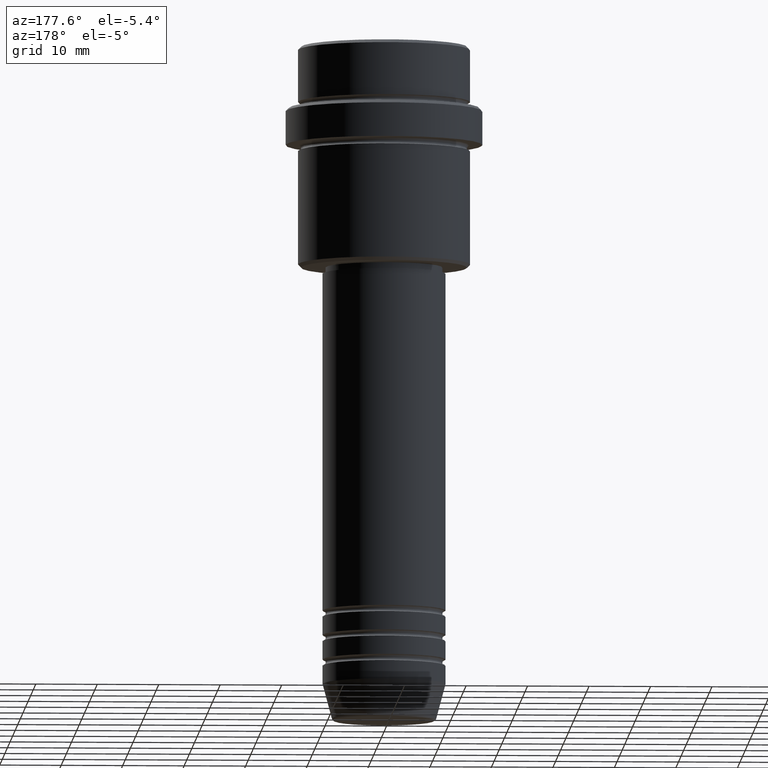
[diagram: clean part render]
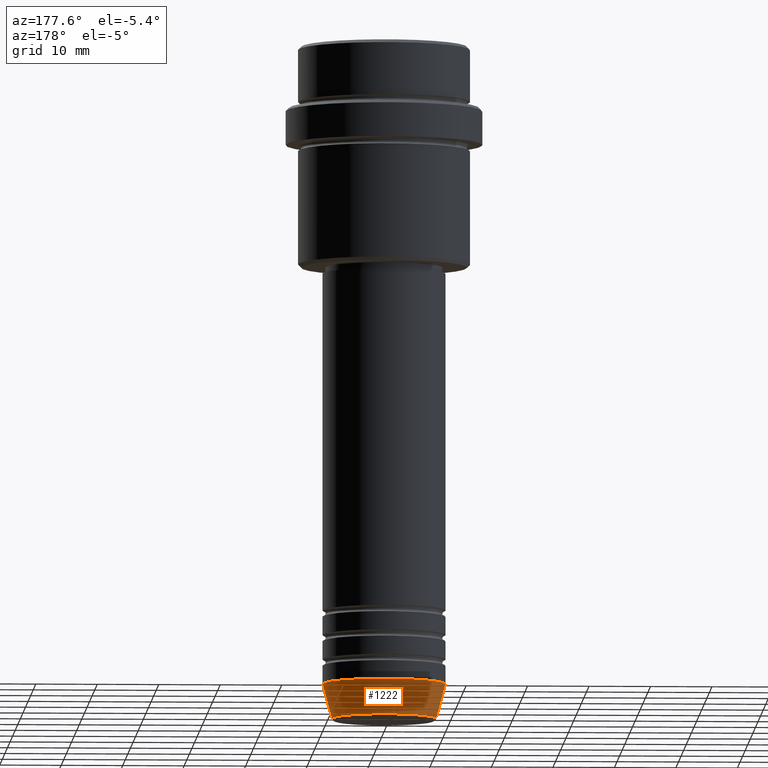
[diagram: same view with one face highlighted and labeled with its STEP entity id]
A machine part, auxiliary view. The second image highlights one B-rep face of the part: STEP entity #1222.
In plain terms, the highlighted conical surface has half-angle 15 deg.
Its self-contained STEP definition (entity closure, byte-faithful):
#20 = EDGE_CURVE ( 'NONE', #606, #1246, #702, .T. ) ;
#46 = DIRECTION ( 'NONE',  ( 1.000000000000000000, 0.000000000000000000, 0.000000000000000000 ) ) ;
#119 = DIRECTION ( 'NONE',  ( -0.2588190451025211281, 3.169619151431769872E-17, 0.9659258262890680902 ) ) ;
#174 = VECTOR ( 'NONE', #736, 1000.000000000000114 ) ;
#235 = EDGE_CURVE ( 'NONE', #512, #859, #430, .T. ) ;
#238 = ORIENTED_EDGE ( 'NONE', *, *, #824, .F. ) ;
#262 = CARTESIAN_POINT ( 'NONE',  ( 0.000000000000000000, 0.000000000000000000, -104.0000000000000142 ) ) ;
#270 = DIRECTION ( 'NONE',  ( -0.000000000000000000, -0.000000000000000000, 1.000000000000000000 ) ) ;
#332 = EDGE_LOOP ( 'NONE', ( #429, #1391, #1056, #238 ) ) ;
#340 = AXIS2_PLACEMENT_3D ( 'NONE', #1196, #645, #522 ) ;
#420 = CARTESIAN_POINT ( 'NONE',  ( 0.000000000000000000, 0.000000000000000000, -109.6294095225512706 ) ) ;
#429 = ORIENTED_EDGE ( 'NONE', *, *, #20, .T. ) ;
#430 = CIRCLE ( 'NONE', #340, 10.00000000000000000 ) ;
#512 = VERTEX_POINT ( 'NONE', #1187 ) ;
#522 = DIRECTION ( 'NONE',  ( 1.000000000000000000, 0.000000000000000000, 0.000000000000000000 ) ) ;
#533 = CARTESIAN_POINT ( 'NONE',  ( 10.00000000000000000, 0.000000000000000000, -104.0000000000000142 ) ) ;
#560 = AXIS2_PLACEMENT_3D ( 'NONE', #420, #634, #966 ) ;
#606 = VERTEX_POINT ( 'NONE', #1223 ) ;
#634 = DIRECTION ( 'NONE',  ( -0.000000000000000000, -0.000000000000000000, 1.000000000000000000 ) ) ;
#645 = DIRECTION ( 'NONE',  ( -0.000000000000000000, -0.000000000000000000, 1.000000000000000000 ) ) ;
#702 = CIRCLE ( 'NONE', #560, 8.491604264568312743 ) ;
#721 = CARTESIAN_POINT ( 'NONE',  ( -8.491604264568312743, 1.132284198685156584E-15, -109.6294095225512706 ) ) ;
#736 = DIRECTION ( 'NONE',  ( 0.2588190451025211281, 0.000000000000000000, 0.9659258262890680902 ) ) ;
#774 = LINE ( 'NONE', #1107, #1274 ) ;
#824 = EDGE_CURVE ( 'NONE', #606, #512, #1164, .T. ) ;
#859 = VERTEX_POINT ( 'NONE', #1054 ) ;
#966 = DIRECTION ( 'NONE',  ( 1.000000000000000000, 0.000000000000000000, 0.000000000000000000 ) ) ;
#1046 = CONICAL_SURFACE ( 'NONE', #1229, 10.00000000000000000, 0.2617993877991498519 ) ;
#1054 = CARTESIAN_POINT ( 'NONE',  ( -10.00000000000000000, 1.224646799147353256E-15, -104.0000000000000142 ) ) ;
#1056 = ORIENTED_EDGE ( 'NONE', *, *, #235, .F. ) ;
#1107 = CARTESIAN_POINT ( 'NONE',  ( -10.00000000000000000, 1.224646799147353256E-15, -104.0000000000000142 ) ) ;
#1164 = LINE ( 'NONE', #533, #174 ) ;
#1187 = CARTESIAN_POINT ( 'NONE',  ( 10.00000000000000000, 0.000000000000000000, -104.0000000000000142 ) ) ;
#1196 = CARTESIAN_POINT ( 'NONE',  ( 0.000000000000000000, 0.000000000000000000, -104.0000000000000142 ) ) ;
#1222 = ADVANCED_FACE ( 'NONE', ( #1346 ), #1046, .T. ) ;
#1223 = CARTESIAN_POINT ( 'NONE',  ( 8.491604264568312743, 0.000000000000000000, -109.6294095225512706 ) ) ;
#1229 = AXIS2_PLACEMENT_3D ( 'NONE', #262, #270, #46 ) ;
#1246 = VERTEX_POINT ( 'NONE', #721 ) ;
#1274 = VECTOR ( 'NONE', #119, 1000.000000000000114 ) ;
#1345 = EDGE_CURVE ( 'NONE', #1246, #859, #774, .T. ) ;
#1346 = FACE_OUTER_BOUND ( 'NONE', #332, .T. ) ;
#1391 = ORIENTED_EDGE ( 'NONE', *, *, #1345, .T. ) ;